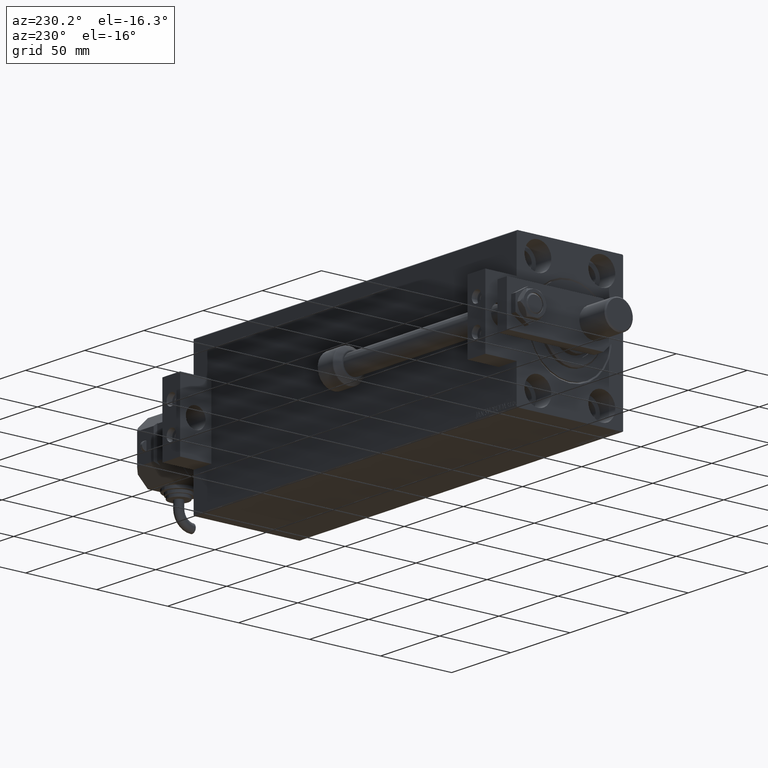
[diagram: clean part render]
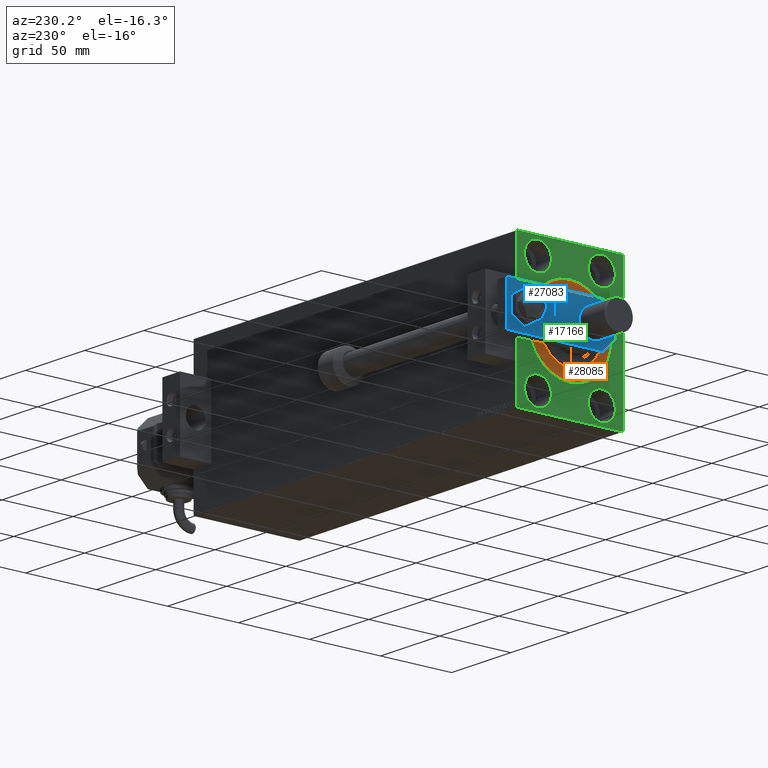
[diagram: same view with three faces highlighted in distinct colors, each labeled with its STEP entity id]
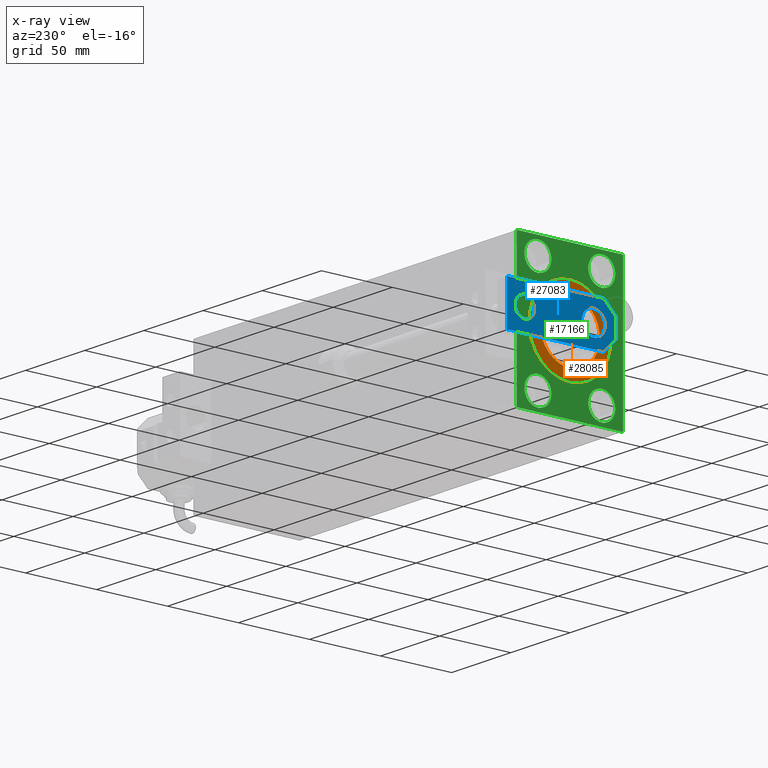
[diagram: x-ray of the same camera — body ghosted, the three highlighted faces saturated]
A machine part, auxiliary view with three faces highlighted in distinct colors.
The next image is the same camera in x-ray (body ghosted, the three faces saturated) — at least one of them is partly hidden behind the body in this view.
Their STEP definitions:

[orange] entity #28085 — the highlighted planar face has unit normal (1, 0, -0).
#1927 = CARTESIAN_POINT ( 'NONE',  ( 0.000000000000000000, 0.000000000000000000, 21.00000000000000000 ) ) ;
#2364 = VERTEX_POINT ( 'NONE', #12813 ) ;
#2947 = AXIS2_PLACEMENT_3D ( 'NONE', #5874, #25026, #33075 ) ;
#3091 = DIRECTION ( 'NONE',  ( 0.000000000000000000, 0.000000000000000000, -1.000000000000000000 ) ) ;
#5238 = EDGE_CURVE ( 'NONE', #2364, #14262, #39919, .T. ) ;
#5754 = ORIENTED_EDGE ( 'NONE', *, *, #19059, .F. ) ;
#5874 = CARTESIAN_POINT ( 'NONE',  ( 0.000000000000000000, 0.000000000000000000, 0.000000000000000000 ) ) ;
#7443 = DIRECTION ( 'NONE',  ( 1.000000000000000000, -0.000000000000000000, 0.000000000000000000 ) ) ;
#8035 = DIRECTION ( 'NONE',  ( -1.000000000000000000, 0.000000000000000000, 0.000000000000000000 ) ) ;
#8038 = DIRECTION ( 'NONE',  ( -1.000000000000000000, 0.000000000000000000, 0.000000000000000000 ) ) ;
#8164 = PLANE ( 'NONE',  #2947 ) ;
#9755 = ORIENTED_EDGE ( 'NONE', *, *, #5238, .F. ) ;
#9807 = EDGE_LOOP ( 'NONE', ( #36078, #9755 ) ) ;
#11068 = CIRCLE ( 'NONE', #39231, 21.00000000000000000 ) ;
#11327 = CARTESIAN_POINT ( 'NONE',  ( 0.000000000000000000, 0.000000000000000000, 0.000000000000000000 ) ) ;
#12813 = CARTESIAN_POINT ( 'NONE',  ( 0.000000000000000000, 3.490243377569956456E-15, 28.50000000000000000 ) ) ;
#13341 = EDGE_CURVE ( 'NONE', #47335, #47242, #11068, .T. ) ;
#13695 = DIRECTION ( 'NONE',  ( 1.000000000000000000, -0.000000000000000000, 0.000000000000000000 ) ) ;
#14262 = VERTEX_POINT ( 'NONE', #15018 ) ;
#15018 = CARTESIAN_POINT ( 'NONE',  ( 0.000000000000000000, 0.000000000000000000, -28.50000000000000000 ) ) ;
#15067 = ORIENTED_EDGE ( 'NONE', *, *, #13341, .F. ) ;
#19059 = EDGE_CURVE ( 'NONE', #47242, #47335, #35382, .T. ) ;
#19832 = EDGE_LOOP ( 'NONE', ( #15067, #5754 ) ) ;
#23412 = DIRECTION ( 'NONE',  ( 0.000000000000000000, 0.000000000000000000, 1.000000000000000000 ) ) ;
#25026 = DIRECTION ( 'NONE',  ( -1.000000000000000000, 0.000000000000000000, 0.000000000000000000 ) ) ;
#26353 = DIRECTION ( 'NONE',  ( 0.000000000000000000, 0.000000000000000000, -1.000000000000000000 ) ) ;
#28085 = ADVANCED_FACE ( 'NONE', ( #46462, #42682 ), #8164, .F. ) ;
#28148 = CARTESIAN_POINT ( 'NONE',  ( 0.000000000000000000, 2.571758278209441661E-15, -21.00000000000000000 ) ) ;
#32043 = EDGE_CURVE ( 'NONE', #14262, #2364, #48164, .T. ) ;
#33075 = DIRECTION ( 'NONE',  ( 0.000000000000000000, 0.000000000000000000, 1.000000000000000000 ) ) ;
#34486 = AXIS2_PLACEMENT_3D ( 'NONE', #42553, #8035, #23412 ) ;
#35382 = CIRCLE ( 'NONE', #37000, 21.00000000000000000 ) ;
#36078 = ORIENTED_EDGE ( 'NONE', *, *, #32043, .F. ) ;
#37000 = AXIS2_PLACEMENT_3D ( 'NONE', #44426, #13695, #3091 ) ;
#39231 = AXIS2_PLACEMENT_3D ( 'NONE', #41968, #7443, #26353 ) ;
#39919 = CIRCLE ( 'NONE', #42328, 28.50000000000000000 ) ;
#41968 = CARTESIAN_POINT ( 'NONE',  ( 0.000000000000000000, 0.000000000000000000, 0.000000000000000000 ) ) ;
#42302 = DIRECTION ( 'NONE',  ( 0.000000000000000000, 0.000000000000000000, 1.000000000000000000 ) ) ;
#42328 = AXIS2_PLACEMENT_3D ( 'NONE', #11327, #8038, #42302 ) ;
#42553 = CARTESIAN_POINT ( 'NONE',  ( 0.000000000000000000, 0.000000000000000000, 0.000000000000000000 ) ) ;
#42682 = FACE_OUTER_BOUND ( 'NONE', #9807, .T. ) ;
#44426 = CARTESIAN_POINT ( 'NONE',  ( 0.000000000000000000, 0.000000000000000000, 0.000000000000000000 ) ) ;
#46462 = FACE_BOUND ( 'NONE', #19832, .T. ) ;
#47242 = VERTEX_POINT ( 'NONE', #28148 ) ;
#47335 = VERTEX_POINT ( 'NONE', #1927 ) ;
#48164 = CIRCLE ( 'NONE', #34486, 28.50000000000000000 ) ;

[blue] entity #27083 — the highlighted planar face has unit normal (-1, 0, 0).
#221 = CARTESIAN_POINT ( 'NONE',  ( 8.250000000000000000, 15.50000000000000178, 8.000000000000000000 ) ) ;
#593 = DIRECTION ( 'NONE',  ( -0.000000000000000000, 0.000000000000000000, 1.000000000000000000 ) ) ;
#3894 = DIRECTION ( 'NONE',  ( 1.000000000000000000, 0.000000000000000000, 0.000000000000000000 ) ) ;
#3983 = VECTOR ( 'NONE', #49741, 1000.000000000000000 ) ;
#4033 = DIRECTION ( 'NONE',  ( 1.000000000000000000, 0.000000000000000000, 0.000000000000000000 ) ) ;
#4373 = FACE_BOUND ( 'NONE', #24007, .T. ) ;
#5456 = DIRECTION ( 'NONE',  ( 1.000000000000000000, 0.000000000000000000, 0.000000000000000000 ) ) ;
#5500 = AXIS2_PLACEMENT_3D ( 'NONE', #34742, #34990, #46830 ) ;
#6300 = EDGE_CURVE ( 'NONE', #28257, #22817, #23103, .T. ) ;
#6505 = CIRCLE ( 'NONE', #11328, 8.250000000000000000 ) ;
#7736 = EDGE_LOOP ( 'NONE', ( #39913, #25545, #16000, #28691, #9994, #22125 ) ) ;
#7907 = DIRECTION ( 'NONE',  ( -1.360567432138672328E-16, -1.000000000000000000, 0.000000000000000000 ) ) ;
#8558 = VECTOR ( 'NONE', #5456, 1000.000000000000000 ) ;
#8813 = VECTOR ( 'NONE', #28761, 1000.000000000000000 ) ;
#9994 = ORIENTED_EDGE ( 'NONE', *, *, #37507, .T. ) ;
#11328 = AXIS2_PLACEMENT_3D ( 'NONE', #30101, #42435, #3894 ) ;
#11452 = CARTESIAN_POINT ( 'NONE',  ( 6.499999999999972466, 9.629649721936179265E-32, 8.000000000000000000 ) ) ;
#11691 = CARTESIAN_POINT ( 'NONE',  ( -14.99999999999999822, 76.50000000000000000, 8.000000000000000000 ) ) ;
#12194 = FACE_OUTER_BOUND ( 'NONE', #7736, .T. ) ;
#12332 = ORIENTED_EDGE ( 'NONE', *, *, #44905, .F. ) ;
#12589 = EDGE_CURVE ( 'NONE', #22817, #26824, #20763, .T. ) ;
#13904 = LINE ( 'NONE', #41091, #8813 ) ;
#14175 = AXIS2_PLACEMENT_3D ( 'NONE', #35112, #593, #46701 ) ;
#15062 = EDGE_CURVE ( 'NONE', #19262, #28593, #20782, .T. ) ;
#15883 = CARTESIAN_POINT ( 'NONE',  ( 1.963948872468190046E-17, 64.00000000000000000, 8.000000000000000000 ) ) ;
#16000 = ORIENTED_EDGE ( 'NONE', *, *, #6300, .T. ) ;
#17006 = VERTEX_POINT ( 'NONE', #25220 ) ;
#17076 = ORIENTED_EDGE ( 'NONE', *, *, #40171, .F. ) ;
#17393 = DIRECTION ( 'NONE',  ( 0.7071067811865465735, -0.7071067811865484609, 0.000000000000000000 ) ) ;
#17487 = CARTESIAN_POINT ( 'NONE',  ( 3.249999999999973355, -3.249999999999986677, 8.000000000000000000 ) ) ;
#17640 = CARTESIAN_POINT ( 'NONE',  ( -3.250000000000012434, -3.250000000000003553, 8.000000000000000000 ) ) ;
#18841 = EDGE_CURVE ( 'NONE', #24678, #45337, #38145, .T. ) ;
#19262 = VERTEX_POINT ( 'NONE', #36553 ) ;
#19538 = DIRECTION ( 'NONE',  ( 0.000000000000000000, 0.000000000000000000, 1.000000000000000000 ) ) ;
#19726 = PLANE ( 'NONE',  #14175 ) ;
#19944 = CARTESIAN_POINT ( 'NONE',  ( -8.250000000000000000, 15.50000000000000000, 8.000000000000000000 ) ) ;
#19976 = CARTESIAN_POINT ( 'NONE',  ( -14.99999999999999822, 76.50000000000000000, 8.000000000000000000 ) ) ;
#19995 = CARTESIAN_POINT ( 'NONE',  ( 15.00000000000000355, 76.50000000000000000, 8.000000000000000000 ) ) ;
#20763 = LINE ( 'NONE', #17487, #36780 ) ;
#20782 = CIRCLE ( 'NONE', #5500, 7.000000000000002665 ) ;
#22125 = ORIENTED_EDGE ( 'NONE', *, *, #18841, .T. ) ;
#22817 = VERTEX_POINT ( 'NONE', #11452 ) ;
#23077 = CARTESIAN_POINT ( 'NONE',  ( 0.000000000000000000, 15.50000000000000000, 8.000000000000000000 ) ) ;
#23103 = LINE ( 'NONE', #23610, #8558 ) ;
#23610 = CARTESIAN_POINT ( 'NONE',  ( -15.00000000000000888, 9.629649721936179265E-32, 8.000000000000000000 ) ) ;
#24007 = EDGE_LOOP ( 'NONE', ( #17076, #12332 ) ) ;
#24678 = VERTEX_POINT ( 'NONE', #46641 ) ;
#25220 = CARTESIAN_POINT ( 'NONE',  ( -15.00000000000000711, 8.500000000000021316, 8.000000000000000000 ) ) ;
#25309 = EDGE_CURVE ( 'NONE', #45337, #17006, #26805, .T. ) ;
#25545 = ORIENTED_EDGE ( 'NONE', *, *, #40841, .T. ) ;
#26746 = AXIS2_PLACEMENT_3D ( 'NONE', #23077, #19538, #27358 ) ;
#26805 = LINE ( 'NONE', #11691, #39886 ) ;
#26824 = VERTEX_POINT ( 'NONE', #37150 ) ;
#27083 = ADVANCED_FACE ( 'NONE', ( #38882, #12194, #4373 ), #19726, .T. ) ;
#27198 = CARTESIAN_POINT ( 'NONE',  ( -7.000000000000002665, 64.00000000000000000, 8.000000000000000000 ) ) ;
#27358 = DIRECTION ( 'NONE',  ( 1.000000000000000000, 0.000000000000000000, 0.000000000000000000 ) ) ;
#28257 = VERTEX_POINT ( 'NONE', #38092 ) ;
#28593 = VERTEX_POINT ( 'NONE', #27198 ) ;
#28691 = ORIENTED_EDGE ( 'NONE', *, *, #12589, .T. ) ;
#28761 = DIRECTION ( 'NONE',  ( -6.802837160693361638E-17, 1.000000000000000000, 0.000000000000000000 ) ) ;
#29066 = DIRECTION ( 'NONE',  ( 0.7071067811865489050, 0.7071067811865461294, -0.000000000000000000 ) ) ;
#30101 = CARTESIAN_POINT ( 'NONE',  ( 0.000000000000000000, 15.50000000000000000, 8.000000000000000000 ) ) ;
#31043 = VERTEX_POINT ( 'NONE', #221 ) ;
#31242 = DIRECTION ( 'NONE',  ( 0.000000000000000000, 0.000000000000000000, 1.000000000000000000 ) ) ;
#33215 = ORIENTED_EDGE ( 'NONE', *, *, #15062, .F. ) ;
#33229 = VERTEX_POINT ( 'NONE', #19944 ) ;
#34324 = EDGE_CURVE ( 'NONE', #28593, #19262, #42466, .T. ) ;
#34623 = VECTOR ( 'NONE', #17393, 1000.000000000000000 ) ;
#34742 = CARTESIAN_POINT ( 'NONE',  ( 1.963948872468190046E-17, 64.00000000000000000, 8.000000000000000000 ) ) ;
#34805 = CIRCLE ( 'NONE', #26746, 8.250000000000000000 ) ;
#34990 = DIRECTION ( 'NONE',  ( 0.000000000000000000, 0.000000000000000000, 1.000000000000000000 ) ) ;
#35112 = CARTESIAN_POINT ( 'NONE',  ( 0.000000000000000000, 0.000000000000000000, 8.000000000000000000 ) ) ;
#36553 = CARTESIAN_POINT ( 'NONE',  ( 7.000000000000002665, 64.00000000000000000, 8.000000000000000000 ) ) ;
#36780 = VECTOR ( 'NONE', #29066, 1000.000000000000114 ) ;
#37150 = CARTESIAN_POINT ( 'NONE',  ( 15.00000000000000888, 8.500000000000000000, 8.000000000000000000 ) ) ;
#37507 = EDGE_CURVE ( 'NONE', #26824, #24678, #13904, .T. ) ;
#38092 = CARTESIAN_POINT ( 'NONE',  ( -6.500000000000007105, 9.629649721936179265E-32, 8.000000000000000000 ) ) ;
#38145 = LINE ( 'NONE', #19995, #3983 ) ;
#38882 = FACE_BOUND ( 'NONE', #45737, .T. ) ;
#39886 = VECTOR ( 'NONE', #7907, 1000.000000000000000 ) ;
#39913 = ORIENTED_EDGE ( 'NONE', *, *, #25309, .T. ) ;
#40171 = EDGE_CURVE ( 'NONE', #33229, #31043, #6505, .T. ) ;
#40841 = EDGE_CURVE ( 'NONE', #17006, #28257, #43859, .T. ) ;
#41091 = CARTESIAN_POINT ( 'NONE',  ( 15.00000000000000888, 9.629649721936179265E-32, 8.000000000000000000 ) ) ;
#42435 = DIRECTION ( 'NONE',  ( 0.000000000000000000, 0.000000000000000000, 1.000000000000000000 ) ) ;
#42466 = CIRCLE ( 'NONE', #48128, 7.000000000000002665 ) ;
#43568 = ORIENTED_EDGE ( 'NONE', *, *, #34324, .F. ) ;
#43859 = LINE ( 'NONE', #17640, #34623 ) ;
#44905 = EDGE_CURVE ( 'NONE', #31043, #33229, #34805, .T. ) ;
#45337 = VERTEX_POINT ( 'NONE', #19976 ) ;
#45737 = EDGE_LOOP ( 'NONE', ( #43568, #33215 ) ) ;
#46641 = CARTESIAN_POINT ( 'NONE',  ( 15.00000000000000355, 76.50000000000000000, 8.000000000000000000 ) ) ;
#46701 = DIRECTION ( 'NONE',  ( 1.000000000000000000, 0.000000000000000000, 0.000000000000000000 ) ) ;
#46830 = DIRECTION ( 'NONE',  ( 1.000000000000000000, 0.000000000000000000, 0.000000000000000000 ) ) ;
#48128 = AXIS2_PLACEMENT_3D ( 'NONE', #15883, #31242, #4033 ) ;
#49741 = DIRECTION ( 'NONE',  ( -1.000000000000000000, 0.000000000000000000, 0.000000000000000000 ) ) ;

[green] entity #17166 — the highlighted planar face has unit normal (1, 0, 0).
#307 = DIRECTION ( 'NONE',  ( -1.000000000000000000, 0.000000000000000000, 0.000000000000000000 ) ) ;
#311 = CARTESIAN_POINT ( 'NONE',  ( 0.000000000000000000, -37.50000000000000711, 49.49999999999994316 ) ) ;
#355 = CARTESIAN_POINT ( 'NONE',  ( 0.000000000000000000, -22.50000000000000711, -37.99999999999999289 ) ) ;
#586 = CARTESIAN_POINT ( 'NONE',  ( 0.000000000000000000, -22.50000000000000711, -47.49999999999999289 ) ) ;
#747 = FACE_OUTER_BOUND ( 'NONE', #36201, .T. ) ;
#1744 = FACE_BOUND ( 'NONE', #35385, .T. ) ;
#1942 = CARTESIAN_POINT ( 'NONE',  ( 0.000000000000000000, -22.50000000000000711, -28.49999999999998934 ) ) ;
#2081 = CIRCLE ( 'NONE', #9323, 9.500000000000001776 ) ;
#2680 = EDGE_LOOP ( 'NONE', ( #36489, #4723 ) ) ;
#2746 = DIRECTION ( 'NONE',  ( 0.000000000000000000, 0.000000000000000000, -1.000000000000000000 ) ) ;
#3735 = LINE ( 'NONE', #27420, #22695 ) ;
#3892 = DIRECTION ( 'NONE',  ( 0.000000000000000000, 0.000000000000000000, 1.000000000000000000 ) ) ;
#4209 = EDGE_CURVE ( 'NONE', #43215, #45065, #46287, .T. ) ;
#4723 = ORIENTED_EDGE ( 'NONE', *, *, #24649, .F. ) ;
#4782 = DIRECTION ( 'NONE',  ( 1.000000000000000000, 0.000000000000000000, 0.000000000000000000 ) ) ;
#4823 = CARTESIAN_POINT ( 'NONE',  ( 0.000000000000000000, 22.50000000000000355, 37.99999999999999289 ) ) ;
#5680 = CIRCLE ( 'NONE', #28239, 9.500000000000001776 ) ;
#5897 = ORIENTED_EDGE ( 'NONE', *, *, #29229, .F. ) ;
#6178 = EDGE_CURVE ( 'NONE', #35330, #35135, #33479, .T. ) ;
#6228 = DIRECTION ( 'NONE',  ( 0.000000000000000000, 0.000000000000000000, 1.000000000000000000 ) ) ;
#6249 = DIRECTION ( 'NONE',  ( 1.000000000000000000, 0.000000000000000000, 0.000000000000000000 ) ) ;
#6509 = ORIENTED_EDGE ( 'NONE', *, *, #35359, .T. ) ;
#6961 = ORIENTED_EDGE ( 'NONE', *, *, #23070, .T. ) ;
#7276 = LINE ( 'NONE', #46564, #34771 ) ;
#7743 = VERTEX_POINT ( 'NONE', #40798 ) ;
#7830 = VERTEX_POINT ( 'NONE', #48610 ) ;
#8176 = ORIENTED_EDGE ( 'NONE', *, *, #6178, .T. ) ;
#8209 = ORIENTED_EDGE ( 'NONE', *, *, #46000, .F. ) ;
#8546 = EDGE_CURVE ( 'NONE', #17481, #7743, #20788, .T. ) ;
#8551 = DIRECTION ( 'NONE',  ( 0.000000000000000000, 0.000000000000000000, -1.000000000000000000 ) ) ;
#8570 = EDGE_CURVE ( 'NONE', #39477, #28440, #14223, .T. ) ;
#8668 = DIRECTION ( 'NONE',  ( -1.000000000000000000, 0.000000000000000000, 0.000000000000000000 ) ) ;
#8705 = EDGE_CURVE ( 'NONE', #13765, #27009, #46693, .T. ) ;
#8828 = VERTEX_POINT ( 'NONE', #586 ) ;
#9323 = AXIS2_PLACEMENT_3D ( 'NONE', #15042, #15292, #30397 ) ;
#9553 = CARTESIAN_POINT ( 'NONE',  ( 0.000000000000000000, 0.000000000000000000, 0.000000000000000000 ) ) ;
#9574 = LINE ( 'NONE', #37754, #30268 ) ;
#9736 = VERTEX_POINT ( 'NONE', #25179 ) ;
#10153 = LINE ( 'NONE', #13199, #40786 ) ;
#10276 = DIRECTION ( 'NONE',  ( 0.000000000000000000, 0.000000000000000000, -1.000000000000000000 ) ) ;
#10416 = EDGE_CURVE ( 'NONE', #17481, #27009, #9574, .T. ) ;
#10487 = AXIS2_PLACEMENT_3D ( 'NONE', #14541, #33187, #6228 ) ;
#10601 = VERTEX_POINT ( 'NONE', #1942 ) ;
#10924 = VECTOR ( 'NONE', #30324, 1000.000000000000000 ) ;
#11679 = DIRECTION ( 'NONE',  ( -0.000000000000000000, -0.7071067811865672237, 0.7071067811865279218 ) ) ;
#11844 = AXIS2_PLACEMENT_3D ( 'NONE', #35889, #17500, #20523 ) ;
#12298 = ORIENTED_EDGE ( 'NONE', *, *, #43954, .F. ) ;
#12788 = EDGE_LOOP ( 'NONE', ( #6509, #8176 ) ) ;
#12838 = FACE_BOUND ( 'NONE', #2680, .T. ) ;
#13199 = CARTESIAN_POINT ( 'NONE',  ( 0.000000000000000000, 37.50000000000000711, -50.00000000000000000 ) ) ;
#13725 = ORIENTED_EDGE ( 'NONE', *, *, #4209, .F. ) ;
#13765 = VERTEX_POINT ( 'NONE', #30066 ) ;
#14223 = LINE ( 'NONE', #37629, #10924 ) ;
#14541 = CARTESIAN_POINT ( 'NONE',  ( 0.000000000000000000, 22.49999999999999645, -37.99999999999999289 ) ) ;
#15042 = CARTESIAN_POINT ( 'NONE',  ( 0.000000000000000000, -22.50000000000000711, -37.99999999999999289 ) ) ;
#15074 = VECTOR ( 'NONE', #11679, 1000.000000000000000 ) ;
#15292 = DIRECTION ( 'NONE',  ( -1.000000000000000000, 0.000000000000000000, 0.000000000000000000 ) ) ;
#15352 = DIRECTION ( 'NONE',  ( 0.000000000000000000, 0.000000000000000000, 1.000000000000000000 ) ) ;
#15558 = CARTESIAN_POINT ( 'NONE',  ( 0.000000000000000000, -22.49999999999999645, 28.49999999999998934 ) ) ;
#16374 = FACE_BOUND ( 'NONE', #33710, .T. ) ;
#16474 = EDGE_CURVE ( 'NONE', #8828, #10601, #24882, .T. ) ;
#16518 = CIRCLE ( 'NONE', #38225, 9.500000000000001776 ) ;
#16869 = CARTESIAN_POINT ( 'NONE',  ( 0.000000000000000000, 22.50000000000000355, 37.99999999999999289 ) ) ;
#17119 = DIRECTION ( 'NONE',  ( 0.000000000000000000, 0.000000000000000000, 1.000000000000000000 ) ) ;
#17166 = ADVANCED_FACE ( 'NONE', ( #27955, #40287, #16374, #12838, #1744, #747 ), #47357, .F. ) ;
#17481 = VERTEX_POINT ( 'NONE', #311 ) ;
#17500 = DIRECTION ( 'NONE',  ( -1.000000000000000000, 0.000000000000000000, 0.000000000000000000 ) ) ;
#17958 = CARTESIAN_POINT ( 'NONE',  ( 0.000000000000000000, 36.99999999999993605, 50.00000000000000711 ) ) ;
#18657 = CARTESIAN_POINT ( 'NONE',  ( 0.000000000000000000, 22.50000000000000355, 28.49999999999998934 ) ) ;
#18887 = CARTESIAN_POINT ( 'NONE',  ( 0.000000000000000000, 3.612708057484695548E-15, -29.50000000000002842 ) ) ;
#19596 = DIRECTION ( 'NONE',  ( 0.000000000000000000, -1.000000000000000000, -1.850371707708594316E-16 ) ) ;
#19699 = VECTOR ( 'NONE', #26028, 1000.000000000000000 ) ;
#20014 = ORIENTED_EDGE ( 'NONE', *, *, #24873, .F. ) ;
#20317 = EDGE_CURVE ( 'NONE', #47542, #9736, #33003, .T. ) ;
#20420 = DIRECTION ( 'NONE',  ( -1.000000000000000000, 0.000000000000000000, 0.000000000000000000 ) ) ;
#20523 = DIRECTION ( 'NONE',  ( 0.000000000000000000, 0.000000000000000000, 1.000000000000000000 ) ) ;
#20788 = LINE ( 'NONE', #36149, #49544 ) ;
#21633 = DIRECTION ( 'NONE',  ( 0.000000000000000000, 0.000000000000000000, 1.000000000000000000 ) ) ;
#22134 = ORIENTED_EDGE ( 'NONE', *, *, #16474, .F. ) ;
#22444 = CARTESIAN_POINT ( 'NONE',  ( 0.000000000000000000, 36.99999999999993605, 50.00000000000000711 ) ) ;
#22695 = VECTOR ( 'NONE', #19596, 1000.000000000000000 ) ;
#22887 = DIRECTION ( 'NONE',  ( 0.000000000000000000, 1.000000000000000000, 9.251858538542970348E-17 ) ) ;
#23070 = EDGE_CURVE ( 'NONE', #49368, #7830, #33086, .T. ) ;
#24305 = ORIENTED_EDGE ( 'NONE', *, *, #20317, .F. ) ;
#24566 = AXIS2_PLACEMENT_3D ( 'NONE', #41810, #46577, #15352 ) ;
#24649 = EDGE_CURVE ( 'NONE', #34143, #35040, #16518, .T. ) ;
#24873 = EDGE_CURVE ( 'NONE', #10601, #8828, #2081, .T. ) ;
#24882 = CIRCLE ( 'NONE', #44165, 9.500000000000001776 ) ;
#25179 = CARTESIAN_POINT ( 'NONE',  ( 0.000000000000000000, 22.49999999999999645, -47.49999999999999289 ) ) ;
#25523 = DIRECTION ( 'NONE',  ( 0.000000000000000000, -1.387778780781445676E-16, 1.000000000000000000 ) ) ;
#26028 = DIRECTION ( 'NONE',  ( -0.000000000000000000, 0.7071067811865426878, -0.7071067811865524577 ) ) ;
#26458 = DIRECTION ( 'NONE',  ( 1.000000000000000000, 0.000000000000000000, 0.000000000000000000 ) ) ;
#27009 = VERTEX_POINT ( 'NONE', #31332 ) ;
#27244 = DIRECTION ( 'NONE',  ( 0.000000000000000000, 0.000000000000000000, 1.000000000000000000 ) ) ;
#27259 = CARTESIAN_POINT ( 'NONE',  ( 0.000000000000000000, 37.00000000000000711, -50.00000000000000000 ) ) ;
#27340 = CARTESIAN_POINT ( 'NONE',  ( 0.000000000000000000, 22.49999999999999645, -28.49999999999998934 ) ) ;
#27420 = CARTESIAN_POINT ( 'NONE',  ( 0.000000000000000000, 37.49999999999999289, 50.00000000000000711 ) ) ;
#27835 = AXIS2_PLACEMENT_3D ( 'NONE', #44798, #6249, #10276 ) ;
#27955 = FACE_BOUND ( 'NONE', #12788, .T. ) ;
#28239 = AXIS2_PLACEMENT_3D ( 'NONE', #16869, #307, #17119 ) ;
#28440 = VERTEX_POINT ( 'NONE', #27259 ) ;
#29067 = EDGE_CURVE ( 'NONE', #39477, #7830, #10153, .T. ) ;
#29229 = EDGE_CURVE ( 'NONE', #9736, #47542, #33546, .T. ) ;
#29539 = CARTESIAN_POINT ( 'NONE',  ( 0.000000000000000000, 22.50000000000000355, 47.49999999999999289 ) ) ;
#29976 = CARTESIAN_POINT ( 'NONE',  ( 0.000000000000000000, 37.50000000000000711, -49.49999999999997158 ) ) ;
#29986 = CIRCLE ( 'NONE', #34841, 9.500000000000001776 ) ;
#30066 = CARTESIAN_POINT ( 'NONE',  ( 0.000000000000000000, -36.99999999999997868, -50.00000000000000711 ) ) ;
#30268 = VECTOR ( 'NONE', #2746, 1000.000000000000000 ) ;
#30324 = DIRECTION ( 'NONE',  ( 0.000000000000000000, -0.7071067811865279218, -0.7071067811865672237 ) ) ;
#30397 = DIRECTION ( 'NONE',  ( 0.000000000000000000, 0.000000000000000000, 1.000000000000000000 ) ) ;
#31332 = CARTESIAN_POINT ( 'NONE',  ( 0.000000000000000000, -37.50000000000000711, -49.50000000000000711 ) ) ;
#32042 = AXIS2_PLACEMENT_3D ( 'NONE', #37788, #26458, #49623 ) ;
#32714 = DIRECTION ( 'NONE',  ( -1.000000000000000000, 0.000000000000000000, 0.000000000000000000 ) ) ;
#33003 = CIRCLE ( 'NONE', #10487, 9.500000000000001776 ) ;
#33086 = LINE ( 'NONE', #17958, #19699 ) ;
#33187 = DIRECTION ( 'NONE',  ( -1.000000000000000000, 0.000000000000000000, 0.000000000000000000 ) ) ;
#33479 = CIRCLE ( 'NONE', #27835, 29.50000000000002842 ) ;
#33546 = CIRCLE ( 'NONE', #11844, 9.500000000000001776 ) ;
#33708 = ORIENTED_EDGE ( 'NONE', *, *, #29067, .F. ) ;
#33710 = EDGE_LOOP ( 'NONE', ( #8209, #13725 ) ) ;
#33908 = EDGE_LOOP ( 'NONE', ( #24305, #5897 ) ) ;
#34143 = VERTEX_POINT ( 'NONE', #18657 ) ;
#34771 = VECTOR ( 'NONE', #22887, 1000.000000000000000 ) ;
#34841 = AXIS2_PLACEMENT_3D ( 'NONE', #47849, #32714, #21633 ) ;
#35040 = VERTEX_POINT ( 'NONE', #29539 ) ;
#35135 = VERTEX_POINT ( 'NONE', #38340 ) ;
#35330 = VERTEX_POINT ( 'NONE', #18887 ) ;
#35359 = EDGE_CURVE ( 'NONE', #35135, #35330, #45705, .T. ) ;
#35385 = EDGE_LOOP ( 'NONE', ( #20014, #22134 ) ) ;
#35598 = CARTESIAN_POINT ( 'NONE',  ( 0.000000000000000000, -36.99999999999997868, -50.00000000000000711 ) ) ;
#35657 = CARTESIAN_POINT ( 'NONE',  ( 0.000000000000000000, -22.49999999999999645, 47.49999999999999289 ) ) ;
#35889 = CARTESIAN_POINT ( 'NONE',  ( 0.000000000000000000, 22.49999999999999645, -37.99999999999999289 ) ) ;
#36149 = CARTESIAN_POINT ( 'NONE',  ( 0.000000000000000000, -37.50000000000000711, 49.49999999999994316 ) ) ;
#36201 = EDGE_LOOP ( 'NONE', ( #40523, #49611, #12298, #6961, #33708, #49465, #49079, #38684 ) ) ;
#36489 = ORIENTED_EDGE ( 'NONE', *, *, #40510, .F. ) ;
#37629 = CARTESIAN_POINT ( 'NONE',  ( 0.000000000000000000, 37.50000000000000711, -49.49999999999997158 ) ) ;
#37754 = CARTESIAN_POINT ( 'NONE',  ( 0.000000000000000000, -37.50000000000000711, 49.99999999999999289 ) ) ;
#37788 = CARTESIAN_POINT ( 'NONE',  ( 0.000000000000000000, 0.000000000000000000, 0.000000000000000000 ) ) ;
#38225 = AXIS2_PLACEMENT_3D ( 'NONE', #4823, #20420, #27244 ) ;
#38340 = CARTESIAN_POINT ( 'NONE',  ( 0.000000000000000000, 0.000000000000000000, 29.50000000000002842 ) ) ;
#38684 = ORIENTED_EDGE ( 'NONE', *, *, #8705, .T. ) ;
#39477 = VERTEX_POINT ( 'NONE', #29976 ) ;
#40287 = FACE_BOUND ( 'NONE', #33908, .T. ) ;
#40510 = EDGE_CURVE ( 'NONE', #35040, #34143, #5680, .T. ) ;
#40523 = ORIENTED_EDGE ( 'NONE', *, *, #10416, .F. ) ;
#40786 = VECTOR ( 'NONE', #25523, 1000.000000000000000 ) ;
#40798 = CARTESIAN_POINT ( 'NONE',  ( 0.000000000000000000, -36.99999999999995026, 49.99999999999999289 ) ) ;
#41810 = CARTESIAN_POINT ( 'NONE',  ( 0.000000000000000000, -22.49999999999999645, 37.99999999999999289 ) ) ;
#43215 = VERTEX_POINT ( 'NONE', #15558 ) ;
#43954 = EDGE_CURVE ( 'NONE', #49368, #7743, #3735, .T. ) ;
#44032 = EDGE_CURVE ( 'NONE', #13765, #28440, #7276, .T. ) ;
#44165 = AXIS2_PLACEMENT_3D ( 'NONE', #355, #8668, #3892 ) ;
#44798 = CARTESIAN_POINT ( 'NONE',  ( 0.000000000000000000, 0.000000000000000000, 0.000000000000000000 ) ) ;
#44979 = AXIS2_PLACEMENT_3D ( 'NONE', #9553, #4782, #8551 ) ;
#45065 = VERTEX_POINT ( 'NONE', #35657 ) ;
#45705 = CIRCLE ( 'NONE', #32042, 29.50000000000002842 ) ;
#46000 = EDGE_CURVE ( 'NONE', #45065, #43215, #29986, .T. ) ;
#46287 = CIRCLE ( 'NONE', #24566, 9.500000000000001776 ) ;
#46564 = CARTESIAN_POINT ( 'NONE',  ( 0.000000000000000000, -37.50000000000000711, -50.00000000000000711 ) ) ;
#46577 = DIRECTION ( 'NONE',  ( -1.000000000000000000, 0.000000000000000000, 0.000000000000000000 ) ) ;
#46693 = LINE ( 'NONE', #35598, #15074 ) ;
#47357 = PLANE ( 'NONE',  #44979 ) ;
#47542 = VERTEX_POINT ( 'NONE', #27340 ) ;
#47849 = CARTESIAN_POINT ( 'NONE',  ( 0.000000000000000000, -22.49999999999999645, 37.99999999999999289 ) ) ;
#48000 = DIRECTION ( 'NONE',  ( -0.000000000000000000, 0.7071067811865474617, 0.7071067811865474617 ) ) ;
#48610 = CARTESIAN_POINT ( 'NONE',  ( 0.000000000000000000, 37.49999999999999289, 49.49999999999995026 ) ) ;
#49079 = ORIENTED_EDGE ( 'NONE', *, *, #44032, .F. ) ;
#49368 = VERTEX_POINT ( 'NONE', #22444 ) ;
#49465 = ORIENTED_EDGE ( 'NONE', *, *, #8570, .T. ) ;
#49544 = VECTOR ( 'NONE', #48000, 1000.000000000000114 ) ;
#49611 = ORIENTED_EDGE ( 'NONE', *, *, #8546, .T. ) ;
#49623 = DIRECTION ( 'NONE',  ( 0.000000000000000000, 0.000000000000000000, -1.000000000000000000 ) ) ;